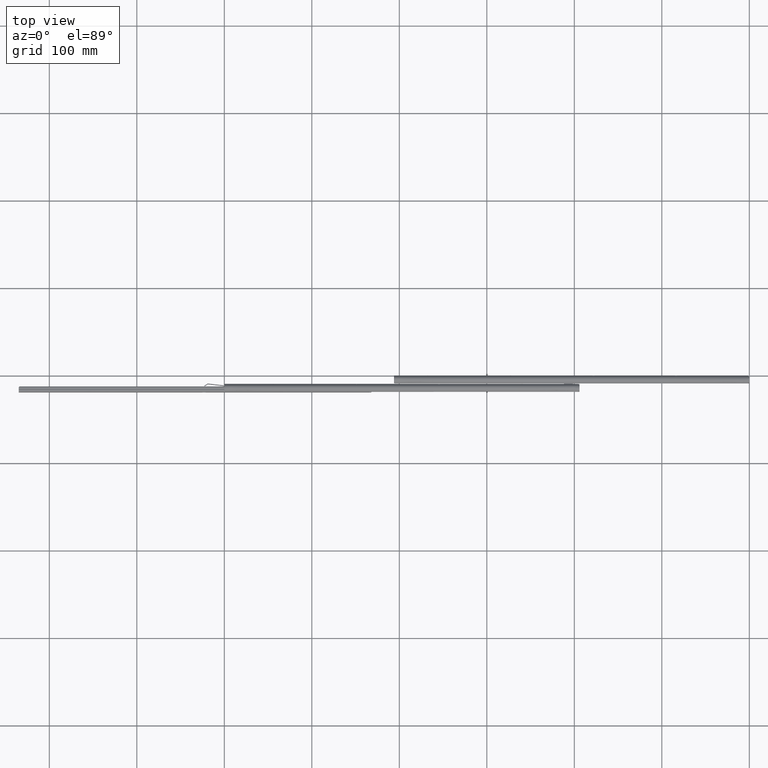
[diagram: clean part render]
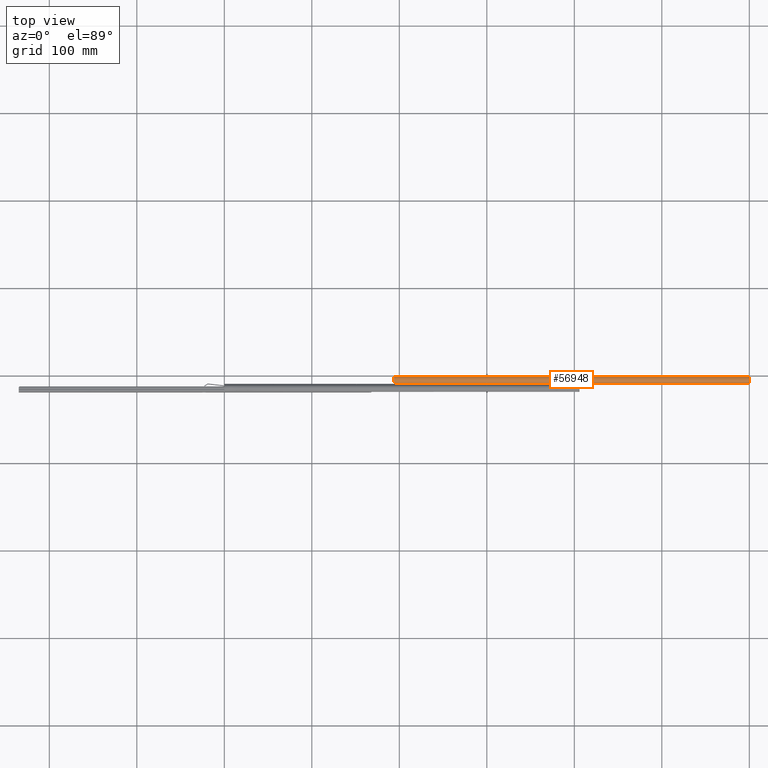
[diagram: same view with one face highlighted and labeled with its STEP entity id]
A machine part, top view. The second image highlights one B-rep face of the part: STEP entity #56948.
In plain terms, the highlighted face is a freeform B-spline surface patch.
Its self-contained STEP definition (entity closure, byte-faithful):
#55431=CARTESIAN_POINT('',(-7.797361481443930,-16.501614328666900,406.0));
#55432=VERTEX_POINT('',#55431);
#55433=CARTESIAN_POINT('',(-8.699999993714290,-15.138563460618050,404.399999999999980));
#55434=VERTEX_POINT('',#55433);
#55435=CARTESIAN_POINT('',(-7.797361481443930,-16.501614328666900,406.0));
#55436=CARTESIAN_POINT('',(-7.873805619575321,-16.426128226022669,406.0));
#55437=CARTESIAN_POINT('',(-7.946032535434404,-16.348703280249421,405.990997168026010));
#55438=CARTESIAN_POINT('',(-8.048366689733021,-16.230104820762030,405.963169052170090));
#55439=CARTESIAN_POINT('',(-8.081474866310520,-16.190162416846821,405.951493124806010));
#55440=CARTESIAN_POINT('',(-8.145713980379384,-16.109547304402490,405.923026404535110));
#55441=CARTESIAN_POINT('',(-8.176853511728353,-16.068838571263012,405.906181416015270));
#55442=CARTESIAN_POINT('',(-8.265269606879532,-15.948717816974840,405.848901248948210));
#55443=CARTESIAN_POINT('',(-8.318358795540403,-15.870322951846410,405.801481485602780));
#55444=CARTESIAN_POINT('',(-8.390332612938117,-15.756336066509290,405.715997534006080));
#55445=CARTESIAN_POINT('',(-8.413163632537687,-15.718734348046510,405.684895291087630));
#55446=CARTESIAN_POINT('',(-8.455725418992657,-15.646143142053850,405.618681484456200));
#55447=CARTESIAN_POINT('',(-8.475428078467305,-15.611224716890330,405.583679275784900));
#55448=CARTESIAN_POINT('',(-8.530331836524463,-15.510742359905510,405.473109634993080));
#55449=CARTESIAN_POINT('',(-8.561401111207639,-15.449330084750910,405.391907258182530));
#55450=CARTESIAN_POINT('',(-8.614078434105510,-15.339821627805360,405.214682097002990));
#55451=CARTESIAN_POINT('',(-8.634910327298892,-15.293401327635170,405.121416308088730));
#55452=CARTESIAN_POINT('',(-8.659656052131508,-15.236454534644510,404.974798546655510));
#55453=CARTESIAN_POINT('',(-8.666806417014399,-15.219599354771789,404.924797647834280));
#55454=CARTESIAN_POINT('',(-8.679044042591487,-15.190340599907261,404.822479922021900));
#55455=CARTESIAN_POINT('',(-8.684098708528977,-15.178014953838501,404.770336436145500));
#55456=CARTESIAN_POINT('',(-8.696079282785318,-15.148547022616670,404.613514962655300));
#55457=CARTESIAN_POINT('',(-8.700000152610683,-15.138563060623961,404.507505407054280));
#55458=CARTESIAN_POINT('',(-8.699999993714290,-15.138563460618050,404.399999999999980));
#55459=B_SPLINE_CURVE_WITH_KNOTS('',3,(#55435,#55436,#55437,#55438,#55439,#55440,#55441,#55442,#55443,#55444,#55445,#55446,#55447,#55448,#55449,#55450,#55451,#55452,#55453,#55454,#55455,#55456,#55457,#55458),.UNSPECIFIED.,.F.,.U.,(4,2,2,2,2,2,2,2,2,2,2,4),(0.0,0.124999999999972,0.187499999999959,0.249999999999945,0.374999999999944,0.437499999999943,0.499999999999942,0.624999999999987,0.750000000000032,0.812500000000024,0.875000000000016,1.0),.UNSPECIFIED.);
#55460=EDGE_CURVE('',#55432,#55434,#55459,.T.);
#55524=CARTESIAN_POINT('',(-8.699999993714290,-15.138563460618050,1.600000000000045));
#55525=VERTEX_POINT('',#55524);
#55526=CARTESIAN_POINT('',(-7.797361481443930,-16.501614328666900,0.0));
#55527=VERTEX_POINT('',#55526);
#55528=CARTESIAN_POINT('',(-8.699999993714290,-15.138563460618050,1.600000000000045));
#55529=CARTESIAN_POINT('',(-8.700000152610658,-15.138563060623961,1.492489349244849));
#55530=CARTESIAN_POINT('',(-8.696078362616063,-15.148546636778320,1.386802531762449));
#55531=CARTESIAN_POINT('',(-8.684205451457107,-15.177753711239150,1.230898220800234));
#55532=CARTESIAN_POINT('',(-8.679235338719231,-15.189876977429901,1.179371119994511));
#55533=CARTESIAN_POINT('',(-8.667076818440588,-15.218958878442240,1.077220881462933));
#55534=CARTESIAN_POINT('',(-8.659862174548049,-15.235973879352500,1.026542418936704));
#55535=CARTESIAN_POINT('',(-8.635068562867510,-15.293049588916210,0.879285922301145));
#55536=CARTESIAN_POINT('',(-8.614272213402192,-15.339377905997321,0.786269952394071));
#55537=CARTESIAN_POINT('',(-8.575229616847183,-15.420602495762930,0.654470988538439));
#55538=CARTESIAN_POINT('',(-8.560804374952346,-15.449821723506339,0.611609000574158));
#55539=CARTESIAN_POINT('',(-8.529370674512322,-15.511326164734051,0.529773960030501));
#55540=CARTESIAN_POINT('',(-8.512430805408309,-15.543485657188359,0.490915070613634));
#55541=CARTESIAN_POINT('',(-8.457633058469932,-15.643828412097781,0.380335820580856));
#55542=CARTESIAN_POINT('',(-8.415838682784132,-15.715845951868140,0.314560337238541));
#55543=CARTESIAN_POINT('',(-8.343364282175420,-15.830767086955721,0.228090494015613));
#55544=CARTESIAN_POINT('',(-8.317829631880560,-15.869798213791180,0.201657289178915));
#55545=CARTESIAN_POINT('',(-8.264384929967461,-15.948310864425300,0.153883455423951));
#55546=CARTESIAN_POINT('',(-8.208411977734475,-16.027518743386530,0.111018298868946));
#55547=CARTESIAN_POINT('',(-8.147098624700984,-16.107761205598351,0.077677860721997));
#55548=CARTESIAN_POINT('',(-8.082936142322602,-16.188375003247540,0.049067674592586));
#55549=CARTESIAN_POINT('',(-8.049386098923637,-16.228898812355158,0.037150045899662));
#55550=CARTESIAN_POINT('',(-7.946348841798977,-16.348385031450849,0.009006493333667));
#55551=CARTESIAN_POINT('',(-7.873837214073866,-16.426097027481902,-4.235165E-019));
#55552=CARTESIAN_POINT('',(-7.797361481443930,-16.501614328666900,-1.065409E-017));
#55553=B_SPLINE_CURVE_WITH_KNOTS('',3,(#55528,#55529,#55530,#55531,#55532,#55533,#55534,#55535,#55536,#55537,#55538,#55539,#55540,#55541,#55542,#55543,#55544,#55545,#55546,#55547,#55548,#55549,#55550,#55551,#55552),.UNSPECIFIED.,.F.,.U.,(4,2,2,2,2,2,2,2,2,1,2,2,4),(0.0,0.125000000000003,0.187500000000004,0.250000000000006,0.375000000000008,0.437500000000008,0.500000000000009,0.625000000000008,0.687500000000006,0.750000000000004,0.812500000000002,0.875000000000000,1.0),.UNSPECIFIED.);
#55554=EDGE_CURVE('',#55525,#55527,#55553,.T.);
#56386=CARTESIAN_POINT('',(-1.820942381806645,-16.065402712160552,0.002126657347066));
#56387=VERTEX_POINT('',#56386);
#56388=CARTESIAN_POINT('',(-1.884824599746885,-16.147869559068798,-3.035946E-016));
#56389=VERTEX_POINT('',#56388);
#56390=CARTESIAN_POINT('',(-1.820942381806645,-16.065402712160552,0.002126657347066));
#56391=CARTESIAN_POINT('',(-1.841867413671544,-16.093158874588049,0.000694151317602));
#56392=CARTESIAN_POINT('',(-1.863161367783485,-16.120648295352201,5.060693E-015));
#56393=CARTESIAN_POINT('',(-1.884824599746890,-16.147869559068798,5.060693E-015));
#56394=QUASI_UNIFORM_CURVE('',3,(#56390,#56391,#56392,#56393),.UNSPECIFIED.,.F.,.U.);
#56395=EDGE_CURVE('',#56387,#56389,#56394,.T.);
#56882=CARTESIAN_POINT('',(-8.699999993714290,-15.138563460618050,1.600000000000045));
#56883=CARTESIAN_POINT('',(-8.699999993714290,-15.138563460618050,404.399999999999980));
#56884=QUASI_UNIFORM_CURVE('',1,(#56882,#56883),.UNSPECIFIED.,.F.,.U.);
#56885=EDGE_CURVE('',#55525,#55434,#56884,.T.);
#56891=CARTESIAN_POINT('',(-1.744288886288155,-15.960189876268450,-10.150000000000009));
#56892=CARTESIAN_POINT('',(-1.744288886288155,-15.960189876268450,416.403750000000000));
#56893=CARTESIAN_POINT('',(-6.241492860186034,-22.349882710929190,-10.149999999999979));
#56894=CARTESIAN_POINT('',(-6.241492860186034,-22.349882710929190,416.403749999999950));
#56895=CARTESIAN_POINT('',(-8.767472779854126,-14.955801053982791,-10.150000000000009));
#56896=CARTESIAN_POINT('',(-8.767472779854126,-14.955801053982791,416.403750000000000));
#56904=(BOUNDED_SURFACE()B_SPLINE_SURFACE(1,2,((#56891,#56893,#56895),(#56892,#56894,#56896)),.UNSPECIFIED.,.F.,.F.,.U.)B_SPLINE_SURFACE_WITH_KNOTS((2,2),(3,3),(0.0,426.553749999999980),(0.0,9.758852551128411),.UNSPECIFIED.)GEOMETRIC_REPRESENTATION_ITEM()RATIONAL_B_SPLINE_SURFACE(((1.0,0.453990499739547,1.0),(1.0,0.453990499739547,1.0)))REPRESENTATION_ITEM('')SURFACE());
#56905=ORIENTED_EDGE('',*,*,#56885,.F.);
#56906=ORIENTED_EDGE('',*,*,#55554,.T.);
#56907=CARTESIAN_POINT('',(-7.797361481443971,-16.501614328666939,0.0));
#56908=CARTESIAN_POINT('',(-6.534233823796353,-17.748911850081498,0.0));
#56909=CARTESIAN_POINT('',(-4.762228550385633,-17.642893467496901,0.0));
#56910=CARTESIAN_POINT('',(-2.990223276974913,-17.536875084912303,0.0));
#56911=CARTESIAN_POINT('',(-1.884824599746849,-16.147869559068830,0.0));
#56919=(BOUNDED_CURVE()B_SPLINE_CURVE(2,(#56907,#56908,#56909,#56910,#56911),.UNSPECIFIED.,.F.,.U.)B_SPLINE_CURVE_WITH_KNOTS((3,2,3),(0.0,0.500000000000000,1.0),.UNSPECIFIED.)CURVE()GEOMETRIC_REPRESENTATION_ITEM()RATIONAL_B_SPLINE_CURVE((1.0,0.913323076196483,1.0,0.913323076196483,1.0))REPRESENTATION_ITEM(''));
#56920=EDGE_CURVE('',#55527,#56389,#56919,.T.);
#56921=ORIENTED_EDGE('',*,*,#56920,.T.);
#56922=ORIENTED_EDGE('',*,*,#56395,.F.);
#56923=CARTESIAN_POINT('',(-1.820941999999945,-16.065402999999950,406.0));
#56924=VERTEX_POINT('',#56923);
#56925=CARTESIAN_POINT('',(-1.820942381806645,-16.065402712160552,0.002126657347066));
#56926=CARTESIAN_POINT('',(-1.820941999999945,-16.065402999999950,406.0));
#56927=QUASI_UNIFORM_CURVE('',1,(#56925,#56926),.UNSPECIFIED.,.F.,.U.);
#56928=EDGE_CURVE('',#56387,#56924,#56927,.T.);
#56929=ORIENTED_EDGE('',*,*,#56928,.T.);
#56930=CARTESIAN_POINT('',(-7.797361481443971,-16.501614328666939,406.0));
#56931=CARTESIAN_POINT('',(-6.511921992345246,-17.770944058701666,406.0));
#56932=CARTESIAN_POINT('',(-4.710184319271484,-17.639437400652920,406.0));
#56933=CARTESIAN_POINT('',(-2.908446646197722,-17.507930742604191,406.0));
#56934=CARTESIAN_POINT('',(-1.820941999999945,-16.065402999999950,406.0));
#56942=(BOUNDED_CURVE()B_SPLINE_CURVE(2,(#56930,#56931,#56932,#56933,#56934),.UNSPECIFIED.,.F.,.U.)B_SPLINE_CURVE_WITH_KNOTS((3,2,3),(0.0,0.500000000000000,1.0),.UNSPECIFIED.)CURVE()GEOMETRIC_REPRESENTATION_ITEM()RATIONAL_B_SPLINE_CURVE((1.0,0.910635857273622,1.0,0.910635857273622,1.0))REPRESENTATION_ITEM(''));
#56943=EDGE_CURVE('',#55432,#56924,#56942,.T.);
#56944=ORIENTED_EDGE('',*,*,#56943,.F.);
#56945=ORIENTED_EDGE('',*,*,#55460,.T.);
#56946=EDGE_LOOP('',(#56905,#56906,#56921,#56922,#56929,#56944,#56945));
#56947=FACE_OUTER_BOUND('',#56946,.T.);
#56948=ADVANCED_FACE('',(#56947),#56904,.T.);